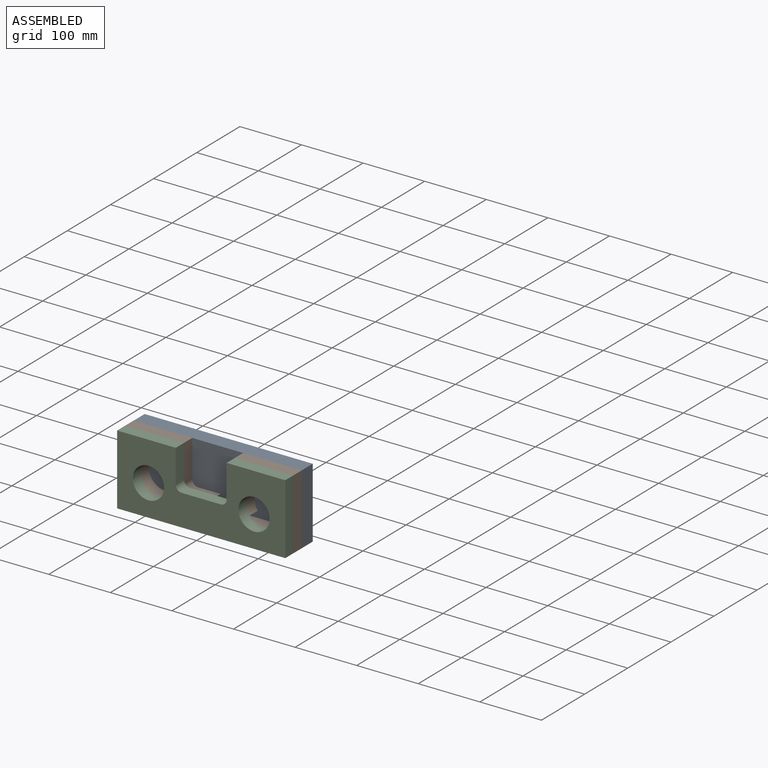
[diagram: assembled view]
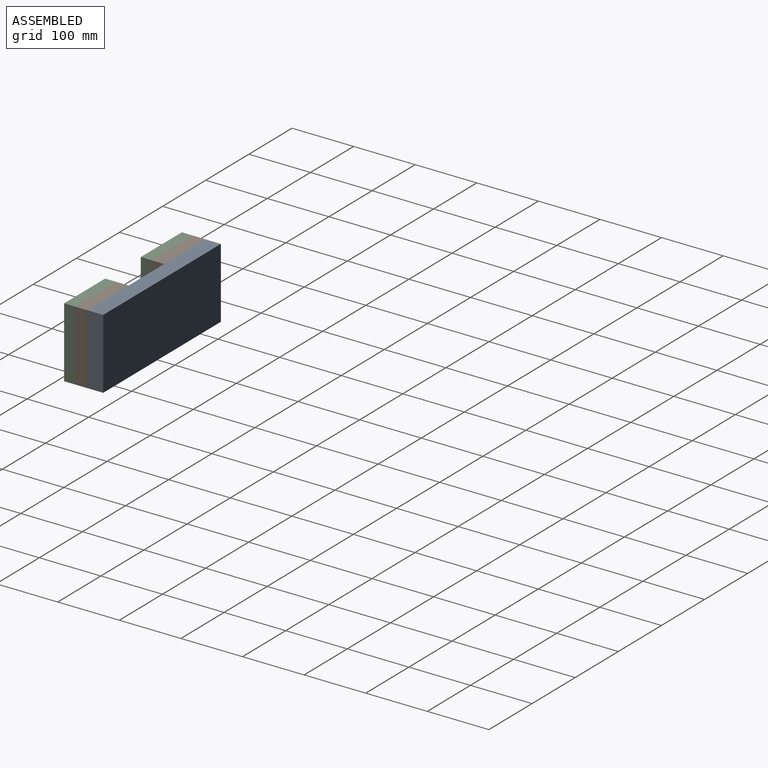
[diagram: assembled view, second angle]
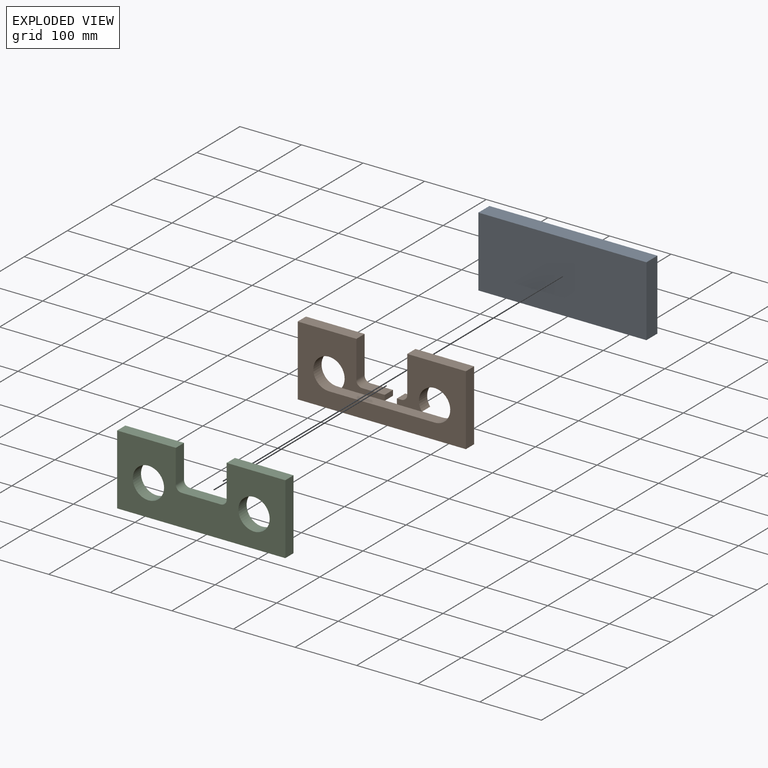
[diagram: exploded view]
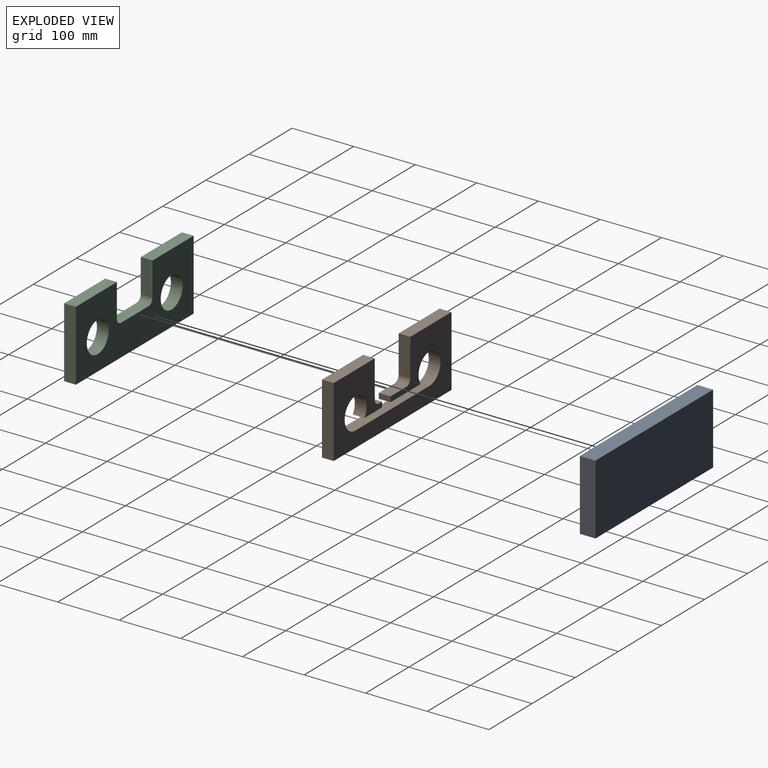
[diagram: exploded view, second angle]
ASSEMBLY  parts=3 mates=2
PART A: 6 faces, bbox 272.8x25.4x114.3 mm
  f0: plane 272.8x25.4mm, normal (0,0,1), area 6929mm2, adj f1,f3,f4,f5
  f1: plane 114.3x25.4mm, normal (-1,0,0), area 2903.2mm2, adj f0,f2,f4,f5
  f2: plane 272.8x25.4mm, normal (0,0,-1), area 6929mm2, adj f1,f3,f4,f5
  f3: plane 114.3x25.4mm, normal (1,0,0), area 2903.2mm2, adj f0,f2,f4,f5
  f4: plane 272.8x114.3mm, normal (0,-1,0), area 31180.6mm2, adj f0,f1,f2,f3
  f5: plane 272.8x114.3mm, normal (0,1,0), area 31180.6mm2, adj f0,f1,f2,f3
PART B: 20 faces, bbox 273.1x19.1x114.3 mm
  f0: plane 36.6x19.05mm, normal (0,0,1), area 697.3mm2, adj f6,f7,f13,f16
  f1: plane 95.25x19.05mm, normal (0,0,1), area 1814.5mm2, adj f5,f6,f7,f11
  f2: plane 95.25x19.05mm, normal (0,0,1), area 1814.5mm2, adj f3,f6,f7,f12
  f3: plane 114.3x19.05mm, normal (-1,0,0), area 2177.4mm2, adj f2,f4,f6,f7
  f4: plane 273.05x19.05mm, normal (0,0,-1), area 5201.6mm2, adj f3,f5,f6,f7
  f5: plane 114.3x19.05mm, normal (1,0,0), area 2177.4mm2, adj f1,f4,f6,f7
  f6: plane 273.05x114.3mm, normal (0,-1,0), area 19769.5mm2, adj f0,f1,f2,f3,f4,f5,f8,f9
  f7: plane 273.05x114.3mm, normal (0,1,0), area 19769.5mm2, adj f0,f1,f2,f3,f4,f5,f8,f9
  f8: cylinder r=25.4mm len=50.8mm, axis (0,-1,0), area 2611.4mm2, adj f6,f7,f17,f19
  f9: cylinder r=25.4mm len=50.8mm, axis (0,-1,0), area 2611.4mm2, adj f6,f7,f15,f17
  f10: cylinder r=9.53mm len=19.05mm, axis (0,-1,0), area 285mm2, adj f6,f7,f11,f14
  f11: plane 60.33x19.05mm, normal (-1,0,0), area 1149.2mm2, adj f1,f6,f7,f10
  f12: plane 60.33x19.05mm, normal (1,0,0), area 1149.2mm2, adj f2,f6,f7,f13
  f13: cylinder r=9.53mm len=19.05mm, axis (0,-1,0), area 285mm2, adj f0,f6,f7,f12
  f14: plane 19.05x7.2mm, normal (0,0,1), area 137.2mm2, adj f6,f7,f10,f18
  f15: plane 70.01x19.05mm, normal (0,0,-1), area 1333.6mm2, adj f6,f7,f9,f16
  f16: plane 19.05x8.55mm, normal (1,0,0), area 162.8mm2, adj f0,f6,f7,f15
  f17: plane 168.52x19.05mm, normal (0,0,1), area 3210.3mm2, adj f6,f7,f8,f9
  f18: plane 19.05x8.55mm, normal (-1,0,0), area 162.8mm2, adj f6,f7,f14,f19
  f19: plane 40.61x19.05mm, normal (0,0,-1), area 773.5mm2, adj f6,f7,f8,f18
PART C: 14 faces, bbox 273.1x19.1x114.3 mm
  f0: plane 95.25x19.05mm, normal (0,0,1), area 1814.5mm2, adj f4,f5,f6,f10
  f1: plane 95.25x19.05mm, normal (0,0,1), area 1814.5mm2, adj f2,f5,f6,f11
  f2: plane 114.3x19.05mm, normal (-1,0,0), area 2177.4mm2, adj f1,f3,f5,f6
  f3: plane 273.05x19.05mm, normal (0,0,-1), area 5201.6mm2, adj f2,f4,f5,f6
  f4: plane 114.3x19.05mm, normal (1,0,0), area 2177.4mm2, adj f0,f3,f5,f6
  f5: plane 273.05x114.3mm, normal (0,-1,0), area 21953mm2, adj f0,f1,f2,f3,f4,f7,f8,f9
  f6: plane 273.05x114.3mm, normal (0,1,0), area 21953mm2, adj f0,f1,f2,f3,f4,f7,f8,f9
  f7: cylinder r=25.4mm len=50.8mm, axis (0,-1,0), area 3040.2mm2, adj f5,f6
  f8: cylinder r=25.4mm len=50.8mm, axis (0,-1,0), area 3040.2mm2, adj f5,f6
  f9: cylinder r=9.53mm len=19.05mm, axis (0,-1,0), area 285mm2, adj f5,f6,f10,f13
  f10: plane 53.98x19.05mm, normal (-1,0,0), area 1028.2mm2, adj f0,f5,f6,f9
  f11: plane 53.98x19.05mm, normal (1,0,0), area 1028.2mm2, adj f1,f5,f6,f12
  f12: cylinder r=9.53mm len=19.05mm, axis (0,-1,0), area 285mm2, adj f5,f6,f11,f13
  f13: plane 63.5x19.05mm, normal (0,0,1), area 1209.7mm2, adj f5,f6,f9,f12
PLACE A t=(-138.63,77.66,18.7)mm
PLACE B t=(-138.89,52.26,18.7)mm
PLACE C t=(-138.89,33.21,18.7)mm
MATE parallel C.f6 <-> B.f6  axis (0,1,0) through (134.16,33.21,133)mm
MATE parallel A.f4 <-> B.f7  axis (0,-1,0) through (134.16,52.26,133)mm
